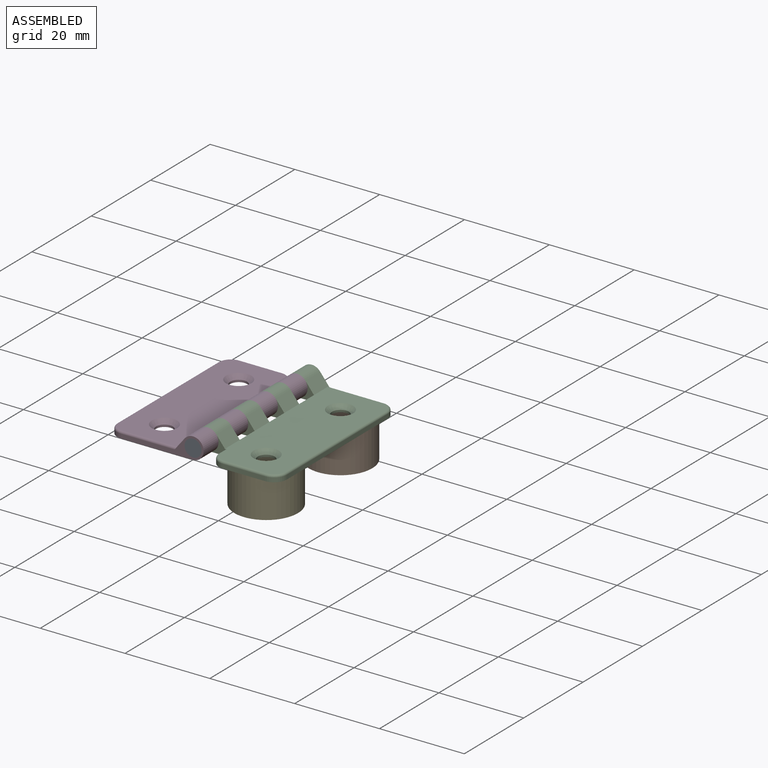
[diagram: assembled view]
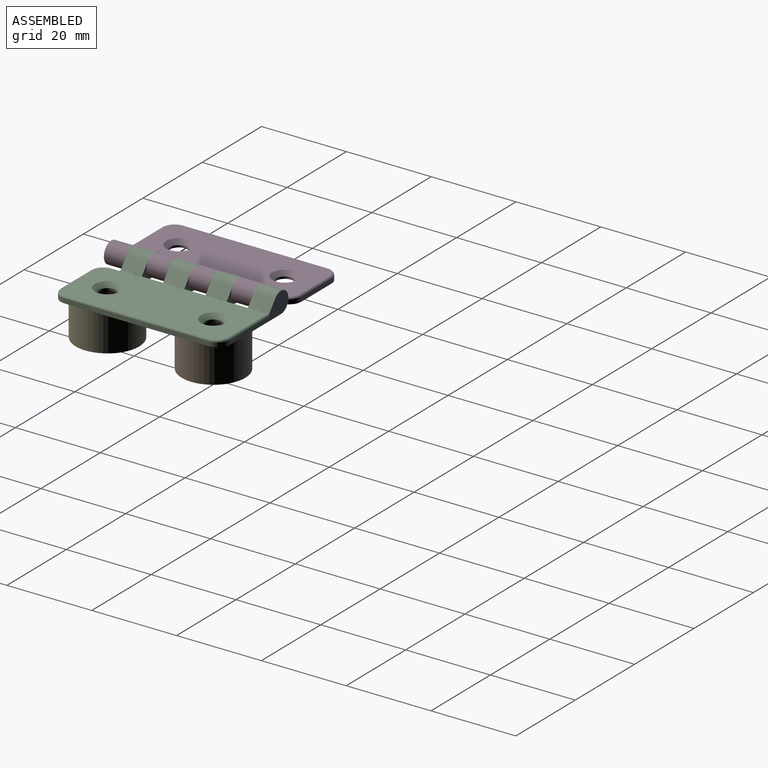
[diagram: assembled view, second angle]
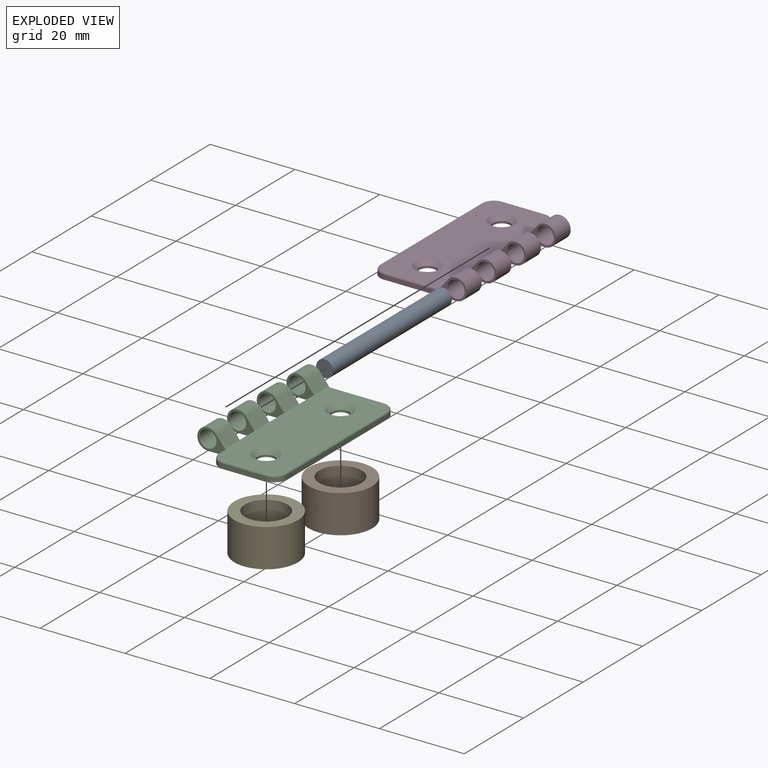
[diagram: exploded view]
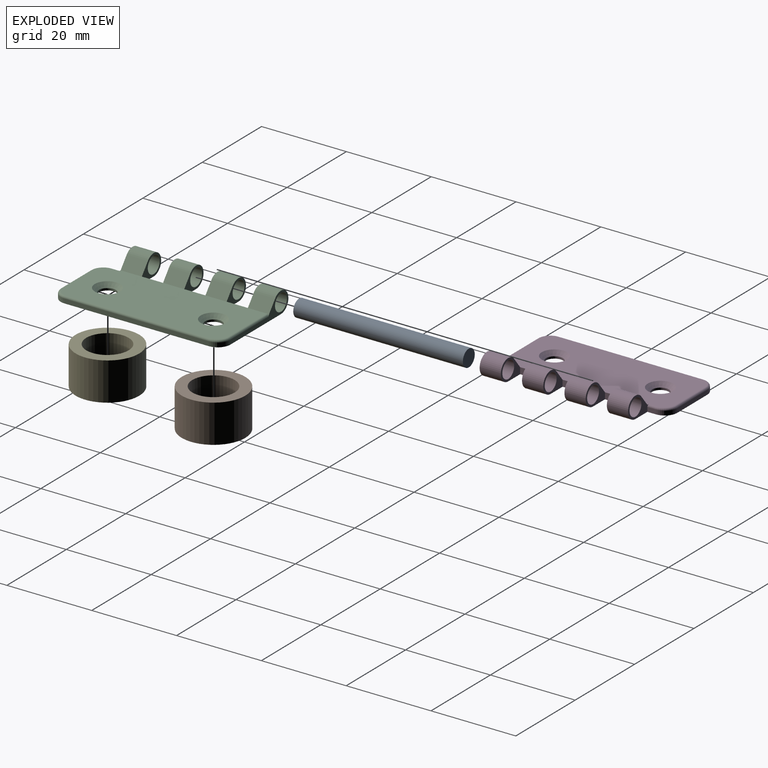
[diagram: exploded view, second angle]
ASSEMBLY  parts=5 mates=4
PART A: 3 faces, bbox 4x40x4 mm
  f0: cylinder r=2mm len=40mm, axis (0,1,0), area 502.7mm2, adj f1,f2
  f1: plane 4x4mm, normal (0,-1,0), area 12.6mm2, adj f0
  f2: plane 4x4mm, normal (0,1,0), area 12.6mm2, adj f0
PART B: 4 faces, bbox 15x9x15 mm
  f0: cylinder r=5mm len=10mm, axis (0,1,0), area 282.7mm2, adj f2,f3
  f1: cylinder r=7.5mm len=15mm, axis (0,1,0), area 424.1mm2, adj f2,f3
  f2: plane 15x15mm, normal (0,-1,0), area 98.2mm2, adj f0,f1
  f3: plane 15x15mm, normal (0,1,0), area 98.2mm2, adj f0,f1
PART C: 42 faces, bbox 22.7x40.5x5 mm
  f0: cylinder r=2.5mm len=5mm, axis (0,1,0), area 50.5mm2, adj f1,f3,f15,f26
  f1: plane 5x3.06mm, normal (-0.78,0,0.62), area 16.5mm2, adj f0,f14,f15,f26,f35
  f2: cylinder r=2mm len=5mm, axis (0,1,0), area 62.8mm2, adj f15,f26
  f3: plane 40x20mm, normal (0,0,-1), area 689.1mm2, adj f0,f4,f7,f10,f13,f15,f16,f17
  f4: cylinder r=2.5mm len=5mm, axis (0,1,0), area 50.5mm2, adj f3,f5,f23,f25
  f5: plane 5x2.56mm, normal (-0.78,0,0.62), area 16.4mm2, adj f4,f14,f23,f25
  f6: cylinder r=2mm len=5mm, axis (0,1,0), area 62.8mm2, adj f23,f25
  f7: cylinder r=2.5mm len=5mm, axis (0,1,0), area 50.5mm2, adj f3,f8,f20,f22
  f8: plane 5x2.56mm, normal (-0.78,0,0.62), area 16.4mm2, adj f7,f14,f20,f22
  f9: cylinder r=2mm len=5mm, axis (0,1,0), area 62.8mm2, adj f20,f22
  f10: cylinder r=2.5mm len=5mm, axis (0,1,0), area 50.5mm2, adj f3,f11,f17,f19
  f11: plane 5x2.56mm, normal (-0.78,0,0.62), area 16.4mm2, adj f10,f14,f17,f19
  f12: cylinder r=2mm len=5mm, axis (0,1,0), area 62.8mm2, adj f17,f19
  f13: plane 34x1mm, normal (-1,0,0), area 34mm2, adj f3,f33,f34,f37
  f14: plane 39x15.5mm, normal (0,0,1), area 541.7mm2, adj f1,f5,f8,f11,f17,f21,f24,f27
  f15: plane 19.5x5mm, normal (0,-1,0), area 25.3mm2, adj f0,f1,f2,f3,f34,f35
  f16: plane 10x1mm, normal (0,1,0), area 10mm2, adj f3,f32,f33,f39
  f17: plane 7x5mm, normal (0,1,0), area 12.2mm2, adj f3,f10,f11,f12,f14,f18,f41
  f18: plane 2x1mm, normal (1,0,0), area 2mm2, adj f3,f17,f32,f41
  f19: plane 6.5x5mm, normal (0,-1,0), area 12.2mm2, adj f3,f10,f11,f12,f21
  f20: plane 6.5x5mm, normal (0,1,0), area 12.2mm2, adj f3,f7,f8,f9,f21
  f21: plane 5x1.5mm, normal (1,0,0), area 7.5mm2, adj f3,f14,f19,f20
  f22: plane 6.5x5mm, normal (0,-1,0), area 12.2mm2, adj f3,f7,f8,f9,f24
  f23: plane 6.5x5mm, normal (0,1,0), area 12.2mm2, adj f3,f4,f5,f6,f24
  f24: plane 5x1.5mm, normal (1,0,0), area 7.5mm2, adj f3,f14,f22,f23
  f25: plane 6.5x5mm, normal (0,-1,0), area 12.2mm2, adj f3,f4,f5,f6,f27
  f26: plane 6.5x5mm, normal (0,1,0), area 12.2mm2, adj f0,f1,f2,f3,f27
  f27: plane 5x1.5mm, normal (1,0,0), area 7.5mm2, adj f3,f14,f25,f26
  f28: cylinder r=2mm len=4mm, axis (0,0,1), area 6.3mm2, adj f3,f29
  f29: cone r=2mm half-angle=45deg, axis (0,0,1), area 22.2mm2, adj f14,f28
  f30: cylinder r=2mm len=4mm, axis (0,0,1), area 6.3mm2, adj f3,f31
  f31: cone r=2mm half-angle=45deg, axis (0,0,1), area 22.2mm2, adj f14,f30
  f32: cylinder r=3mm len=3mm, axis (0,0,1), area 4.7mm2, adj f3,f16,f18,f40
  f33: cylinder r=3mm len=3mm, axis (0,0,-1), area 4.7mm2, adj f3,f13,f16,f38
  f34: cylinder r=3mm len=3mm, axis (0,0,1), area 4.7mm2, adj f3,f13,f15,f36
  f35: cylinder r=0.5mm len=13mm, axis (1,0,0), area 10.1mm2, adj f1,f14,f15,f36
  f36: torus R=2.5mm, axis (0,0,1), area 3.5mm2, adj f14,f34,f35,f37
  f37: cylinder r=0.5mm len=34mm, axis (0,1,0), area 26.7mm2, adj f13,f14,f36,f38
  f38: torus R=2.5mm, axis (0,0,1), area 3.5mm2, adj f14,f33,f37,f39
  f39: cylinder r=0.5mm len=10mm, axis (-1,0,0), area 7.9mm2, adj f14,f16,f38,f40
  f40: torus R=2.5mm, axis (0,0,1), area 3.5mm2, adj f14,f32,f39,f41
  f41: cylinder r=0.5mm len=2mm, axis (0,1,0), area 1.6mm2, adj f14,f17,f18,f40
PART D: same geometry as C
PART E: same geometry as B
PLACE A rot(axis=(0,-1,0),0deg) t=(-12.07,0.15,2.76)mm
PLACE B rot(axis=(1,0,0),90deg) t=(-0.07,12.65,-4.24)mm
PLACE C rot(axis=(0,0,1),180deg) t=(7.93,0.15,0.26)mm
PLACE D rot(axis=(0,-1,0),0deg) t=(-32.07,0.15,0.26)mm
PLACE E rot(axis=(1,0,0),90deg) t=(-0.07,-12.35,-4.24)mm
MATE revolute C.f0 <-> A.f0  axis (0,1,0) through (-12.07,20.15,2.76)mm
MATE revolute E.f1 <-> C.f28  axis (0,0,1) through (-0.07,-12.35,0.26)mm
MATE revolute B.f1 <-> C.f30  axis (0,0,1) through (-0.07,12.65,0.26)mm
MATE revolute A.f0 <-> D.f0  axis (0,-1,0) through (-12.07,-19.85,2.76)mm
